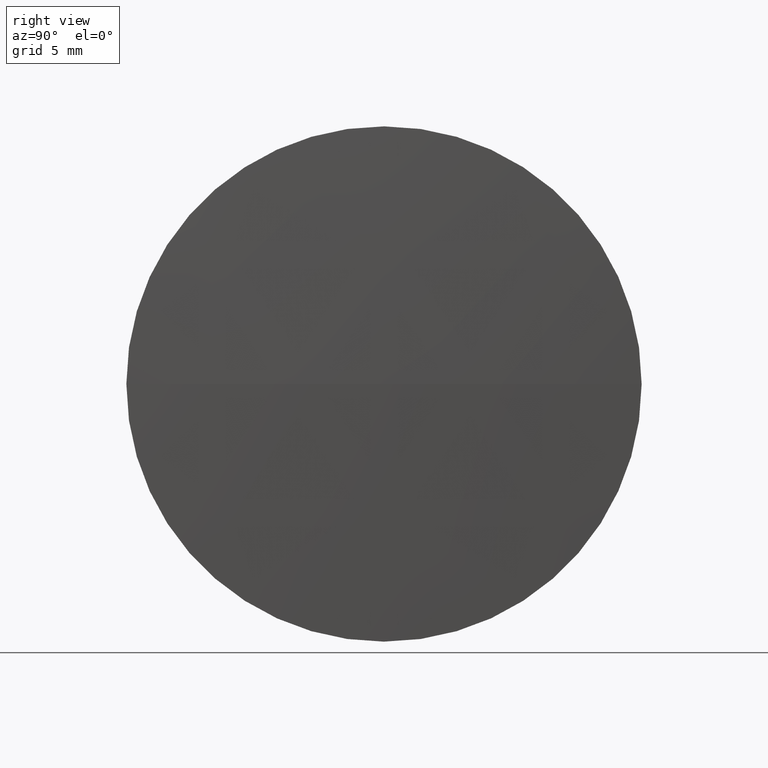
[diagram: clean part render]
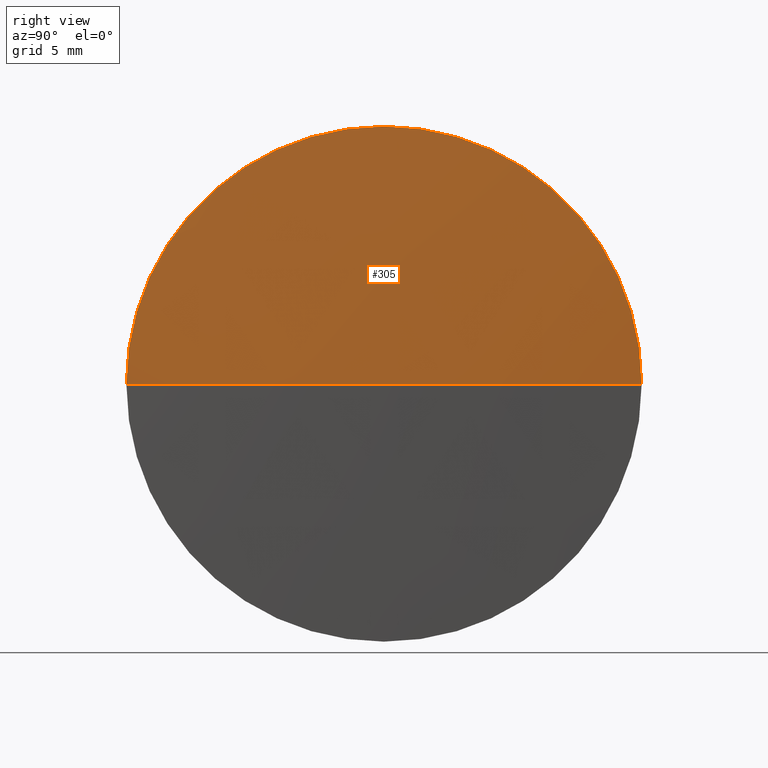
[diagram: same view with one face highlighted and labeled with its STEP entity id]
A machine part, right view. The second image highlights one B-rep face of the part: STEP entity #305.
In plain terms, the highlighted spherical surface has radius 273.559 mm.
Its self-contained STEP definition (entity closure, byte-faithful):
#6 = EDGE_CURVE ( 'NONE', #74, #83, #142, .T. ) ;
#12 = DIRECTION ( 'NONE',  ( -0.0000000000000000000, 0.0000000000000000000, 1.000000000000000000 ) ) ;
#23 = ORIENTED_EDGE ( 'NONE', *, *, #139, .F. ) ;
#37 = ORIENTED_EDGE ( 'NONE', *, *, #176, .F. ) ;
#59 = CARTESIAN_POINT ( 'NONE',  ( -185.5556735932195200, 48.61611302318475200, 0.0000000000000000000 ) ) ;
#74 = VERTEX_POINT ( 'NONE', #164 ) ;
#83 = VERTEX_POINT ( 'NONE', #140 ) ;
#87 = CARTESIAN_POINT ( 'NONE',  ( 87.70819308894824900, 48.61611302318478100, 0.0000000000000000000 ) ) ;
#104 = CIRCLE ( 'NONE', #229, 273.5588251804163100 ) ;
#115 = CARTESIAN_POINT ( 'NONE',  ( 87.70819308894824900, 48.61611302318478100, 0.0000000000000000000 ) ) ;
#125 = ORIENTED_EDGE ( 'NONE', *, *, #153, .F. ) ;
#127 = CARTESIAN_POINT ( 'NONE',  ( 87.70819308894824900, 48.61611302318478100, 12.69999999999999600 ) ) ;
#135 = SPHERICAL_SURFACE ( 'NONE', #222, 273.5588251804163100 ) ;
#139 = EDGE_CURVE ( 'NONE', #74, #235, #104, .T. ) ;
#140 = CARTESIAN_POINT ( 'NONE',  ( 87.70819308894824900, 61.31611302318465600, 0.0000000000000000000 ) ) ;
#142 = CIRCLE ( 'NONE', #294, 273.5588251804163100 ) ;
#148 = DIRECTION ( 'NONE',  ( -1.000000000000000000, -0.0000000000000000000, -0.0000000000000000000 ) ) ;
#153 = EDGE_CURVE ( 'NONE', #306, #83, #336, .T. ) ;
#164 = CARTESIAN_POINT ( 'NONE',  ( 88.00315158719676800, 48.61611302318476600, 0.0000000000000000000 ) ) ;
#172 = CARTESIAN_POINT ( 'NONE',  ( -185.5556735932195200, 48.61611302318475200, 0.0000000000000000000 ) ) ;
#174 = DIRECTION ( 'NONE',  ( -1.000000000000000000, -0.0000000000000000000, -0.0000000000000000000 ) ) ;
#176 = EDGE_CURVE ( 'NONE', #235, #306, #315, .T. ) ;
#180 = DIRECTION ( 'NONE',  ( 0.0000000000000000000, 1.000000000000000000, 0.0000000000000000000 ) ) ;
#189 = FACE_OUTER_BOUND ( 'NONE', #299, .T. ) ;
#192 = ORIENTED_EDGE ( 'NONE', *, *, #6, .T. ) ;
#196 = AXIS2_PLACEMENT_3D ( 'NONE', #115, #174, #342 ) ;
#200 = DIRECTION ( 'NONE',  ( 1.000000000000000000, 0.0000000000000000000, 0.0000000000000000000 ) ) ;
#222 = AXIS2_PLACEMENT_3D ( 'NONE', #297, #244, #180 ) ;
#229 = AXIS2_PLACEMENT_3D ( 'NONE', #172, #231, #316 ) ;
#231 = DIRECTION ( 'NONE',  ( 0.0000000000000000000, 1.224646799147353200E-016, -1.000000000000000000 ) ) ;
#235 = VERTEX_POINT ( 'NONE', #261 ) ;
#244 = DIRECTION ( 'NONE',  ( -0.0000000000000000000, 0.0000000000000000000, -1.000000000000000000 ) ) ;
#261 = CARTESIAN_POINT ( 'NONE',  ( 87.70819308894824900, 35.91611302318488400, -1.555301434917123000E-015 ) ) ;
#294 = AXIS2_PLACEMENT_3D ( 'NONE', #59, #12, #200 ) ;
#297 = CARTESIAN_POINT ( 'NONE',  ( -185.5556735932195200, 48.61611302318475200, 0.0000000000000000000 ) ) ;
#299 = EDGE_LOOP ( 'NONE', ( #23, #192, #125, #37 ) ) ;
#305 = ADVANCED_FACE ( 'NONE', ( #189 ), #135, .T. ) ;
#306 = VERTEX_POINT ( 'NONE', #127 ) ;
#313 = DIRECTION ( 'NONE',  ( 0.0000000000000000000, 0.0000000000000000000, 1.000000000000000000 ) ) ;
#315 = CIRCLE ( 'NONE', #196, 12.69999999999999600 ) ;
#316 = DIRECTION ( 'NONE',  ( 0.0000000000000000000, 1.000000000000000000, 1.224646799147353200E-016 ) ) ;
#322 = AXIS2_PLACEMENT_3D ( 'NONE', #87, #148, #313 ) ;
#336 = CIRCLE ( 'NONE', #322, 12.69999999999999600 ) ;
#342 = DIRECTION ( 'NONE',  ( 0.0000000000000000000, 0.0000000000000000000, 1.000000000000000000 ) ) ;